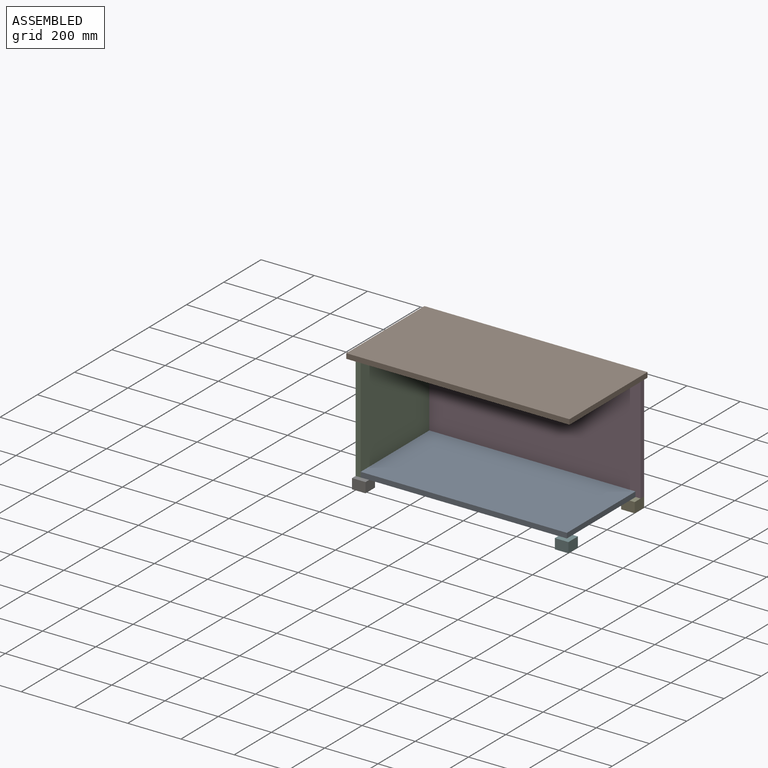
[diagram: assembled view]
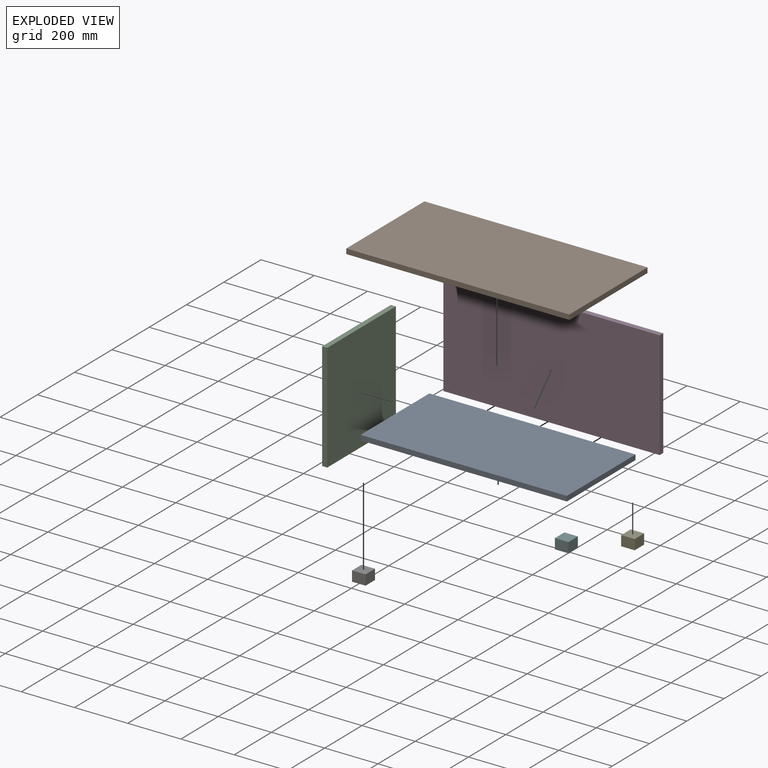
[diagram: exploded view]
GUIDED TOUR — FREECAD ASSEMBLY "complete"

This assembly has 7 components, labeled P0..P6 below (a component is one placed body or linked part; the same part can appear more than once), held together by 0 modeled joints plus 10 derived contact edges. A joint is a constraint between two components; its type names the relative motion it leaves free:
  CONTACT — a derived adjacency edge — the two components touch in the source model (clearance under 2% of the assembly's diagonal); it is measured from the geometry, not a modeled constraint.
Axis/direction vectors are unit vectors and 'through' points are millimeter coordinates, both in the assembly's world frame.

MATES
  1. CONTACT "contact_0_2": P0 <-> P2, contact direction (-0.976, -0.122, 0.178) through (-387.35, -368.30, 0.00) mm (derived from contact, not a modeled constraint)
  2. CONTACT "contact_0_3": P0 <-> P3, contact direction (0.071, 0.597, 0.799) through (396.88, 0.00, 0.00) mm (derived from contact, not a modeled constraint)
  3. CONTACT "contact_0_4": P0 <-> P4, contact direction (0.000, 0.000, -1.000) through (352.43, -34.92, 0.00) mm (derived from contact, not a modeled constraint)
  4. CONTACT "contact_0_5": P0 <-> P5, contact direction (0.000, 0.000, -1.000) through (352.43, -333.38, 0.00) mm (derived from contact, not a modeled constraint)
  5. CONTACT "contact_0_6": P0 <-> P6, contact direction (0.000, 0.000, -1.000) through (-352.43, -333.38, 0.00) mm (derived from contact, not a modeled constraint)
  6. CONTACT "contact_1_2": P1 <-> P2, contact direction (-1.000, 0.000, 0.000) through (-384.18, -365.12, 406.40) mm (derived from contact, not a modeled constraint)
  7. CONTACT "contact_1_3": P1 <-> P3, contact direction (-0.204, 0.793, -0.575) through (412.75, 19.05, 406.40) mm (derived from contact, not a modeled constraint)
  8. CONTACT "contact_2_3": P2 <-> P3, contact direction (0.976, 0.122, -0.178) through (-406.40, 0.00, 406.40) mm (derived from contact, not a modeled constraint)
  9. CONTACT "contact_2_6": P2 <-> P6, contact direction (-0.071, -0.597, -0.799) through (-406.40, -377.82, 0.00) mm (derived from contact, not a modeled constraint)
  10. CONTACT "contact_3_4": P3 <-> P4, contact direction (0.976, 0.122, -0.178) through (406.40, 19.05, 0.00) mm (derived from contact, not a modeled constraint)

ASSEMBLY ORDER
  1. P5 — the base component [order verified]
  2. P4 [order verified]
  3. P0 [order verified]
  4. P3 [order verified]
  5. P6 [order verified]
  6. P2 [order verified]
  7. P1 [order verified]
Order-tag legend:
  [order verified] — this step's position reverses a verified removal order: the component was checked to insert without passing through the ones already placed.

Of the 7 components, 7 carry a construction recipe — the FreeCAD feature program (sketches with constraints, then the solid features that consume them) that regenerates the part from scratch, quoted from this document or from the linked companion document it references; the rest are supplied as boundary geometry only. The tour below walks the components in assembly order: each is shown spotlighted twice — in the assembled view, then in the exploded view, where a leader line traces a displaced component back to its assembled socket (components that stay in place when exploded have no leader line; saturated green if recipe-attached, orange if geometry-only; every other component desaturated gray) — followed by its recipe or geometry summary and the mates that hold it.
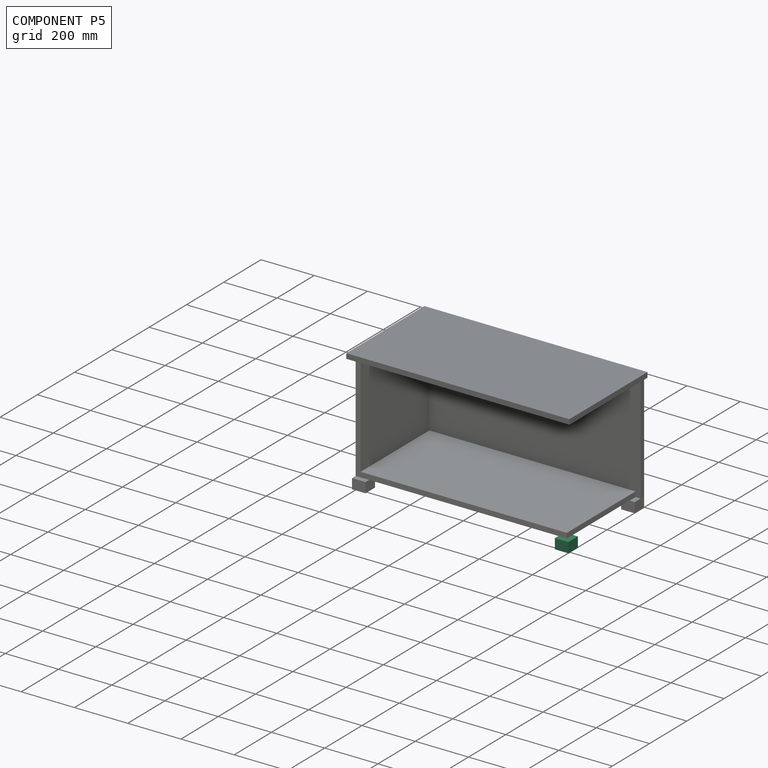
[diagram: component P5 — assembled]
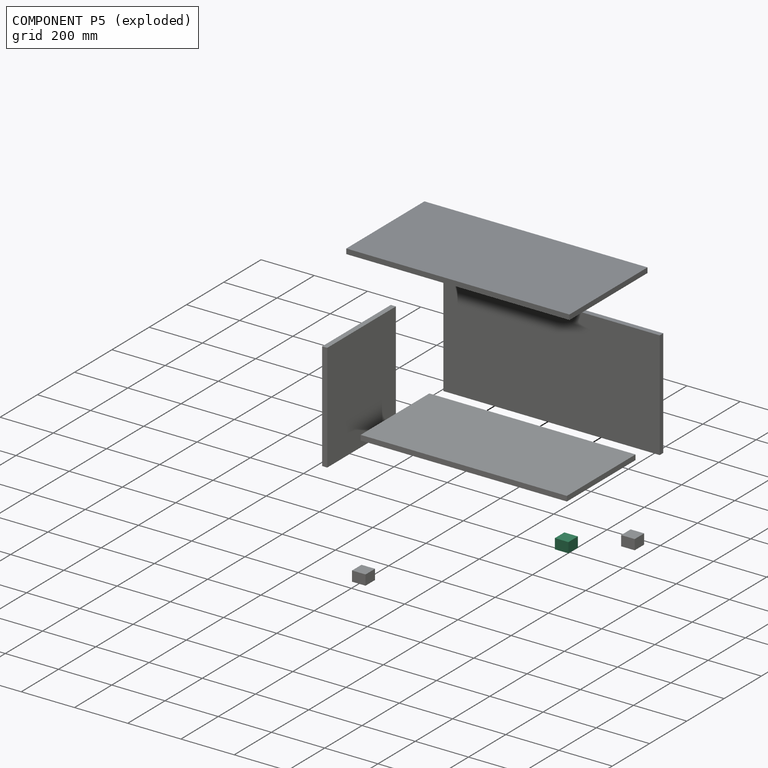
[diagram: component P5 — exploded]
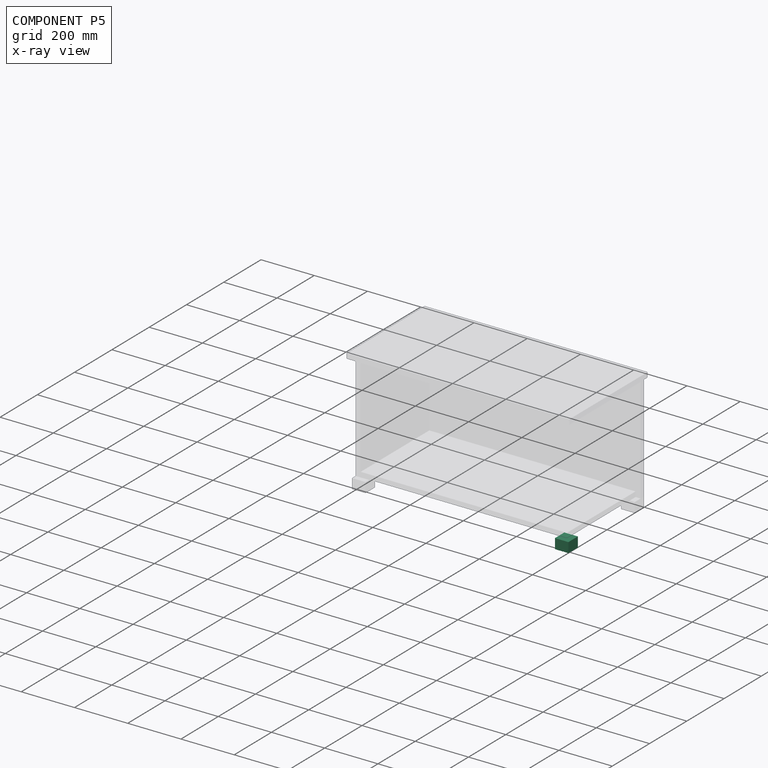
[diagram: component P5 — x-ray view]
COMPONENT P5 — same part as P4; its construction recipe is shown at P4.
Held by: resting contact with P0 (derived edge).
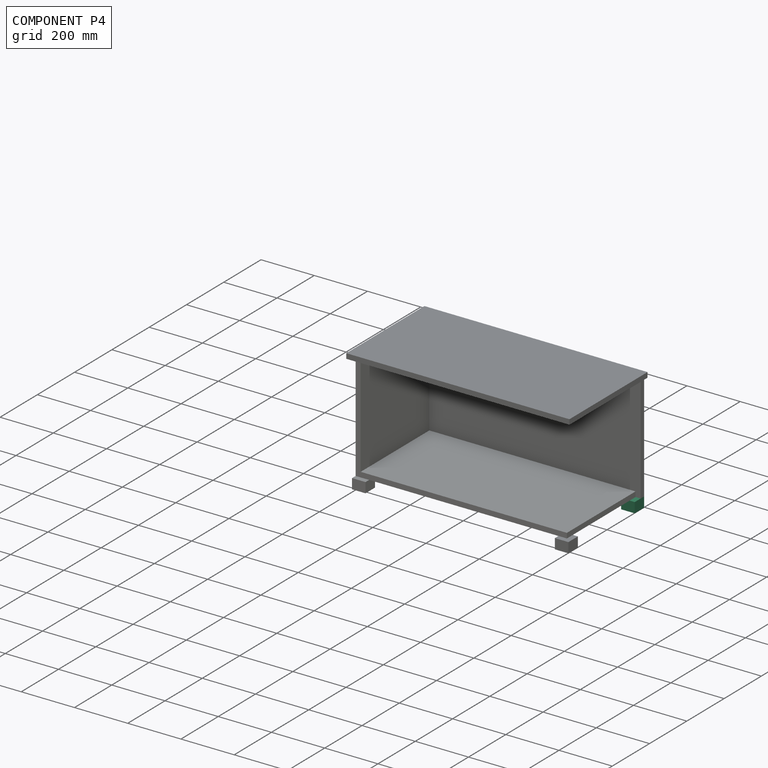
[diagram: component P4 — assembled]
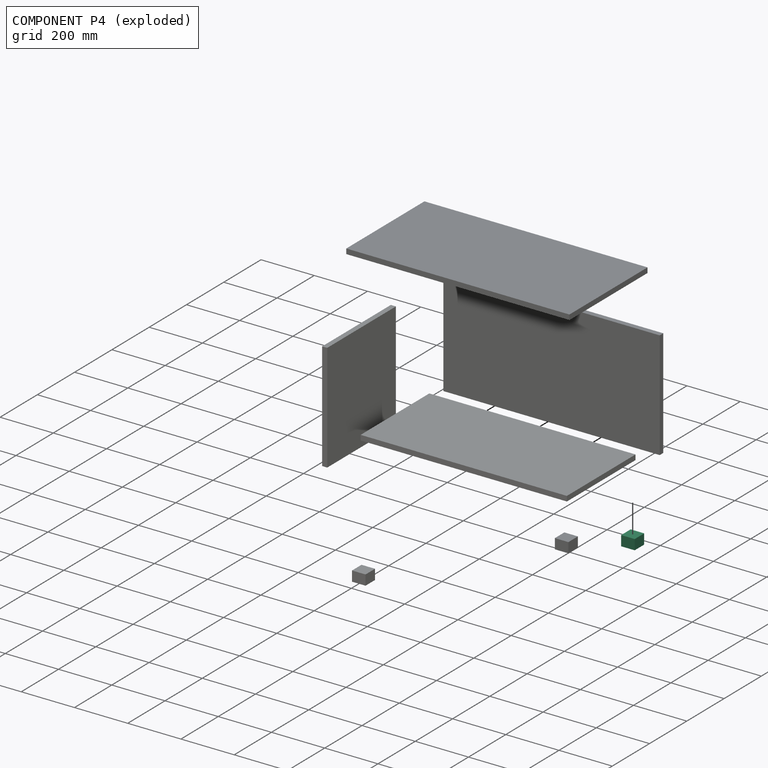
[diagram: component P4 — exploded]
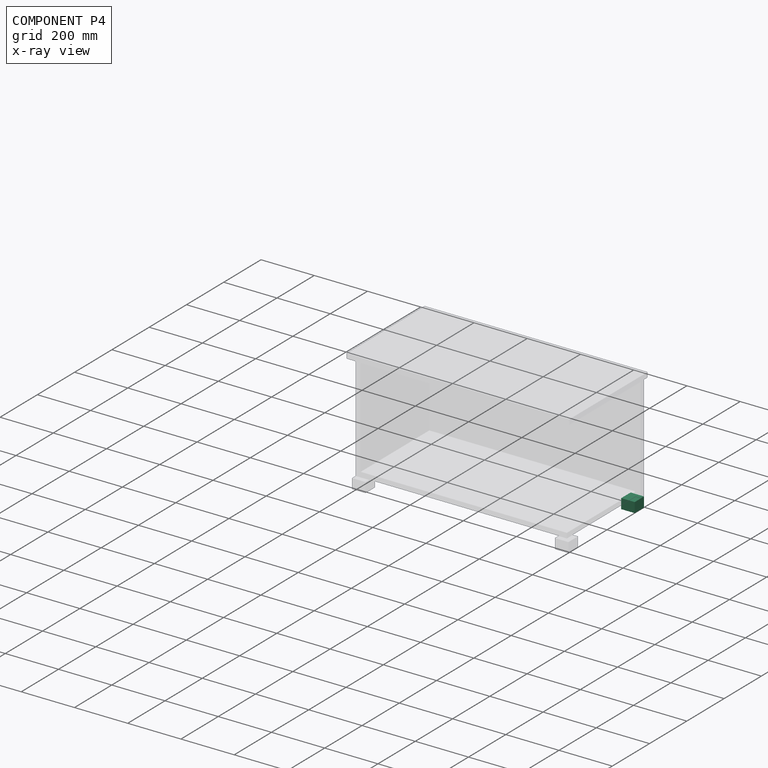
[diagram: component P4 — x-ray view]
COMPONENT P4 — recipe-attached ("foot001", modeled in this document).
Held by: resting contact with P0 (derived edge); resting contact with P3 (derived edge).
Construction recipe (the document's own serialized feature program — sketch geometry with constraints, then the solid features built on it; lengths are millimeters unless a unit is written):

FEATURE [Sketcher::SketchObject] Sketch009
  FullyConstrained = true
  MapMode = 5
  Support = -> [XY_Plane004]
  sketch-geometry (4):
    g0: LineSegment StartX=-25.4 StartY=25.4 StartZ=0 EndX=25.4 EndY=25.4 EndZ=0
    g1: LineSegment StartX=25.4 StartY=25.4 StartZ=0 EndX=25.4 EndY=-25.4 EndZ=0
    g2: LineSegment StartX=25.4 StartY=-25.4 StartZ=0 EndX=-25.4 EndY=-25.4 EndZ=0
    g3: LineSegment StartX=-25.4 StartY=-25.4 StartZ=0 EndX=-25.4 EndY=25.4 EndZ=0
  constraints (10):
    c: Coincident(g0,g1)
    c: Coincident(g1,g2)
    c: Coincident(g2,g3)
    c: Coincident(g3,g0)
    c: Horizontal(g2)
    c: Vertical(g1)
    c: Symmetric(g0,g0,g-2)
    c: Symmetric(g0,g2,g-1)
    c: Equal(g3,g0)
    c: DistanceX(g0,g0) = 50.8
FEATURE [PartDesign::Pad] Pad009
  Direction = (1,1,1)
  Length = 38.1
  Length2 = 100.076
  Profile = -> Sketch009
  Type = 0
FEATURE [PartDesign::Body] Body004  label="foot"
  Group = -> [Sketch009,Pad009]
  Origin = -> Origin004
  Placement = pos=(-381,-6.35,-38.1) rot=(0,0,1;0rad)
  Tip = -> Pad009
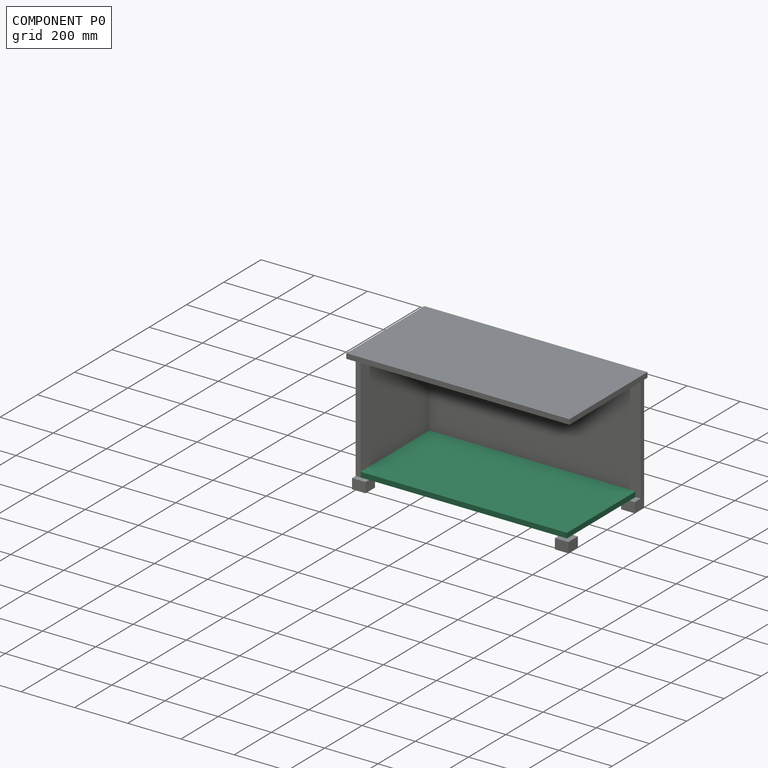
[diagram: component P0 — assembled]
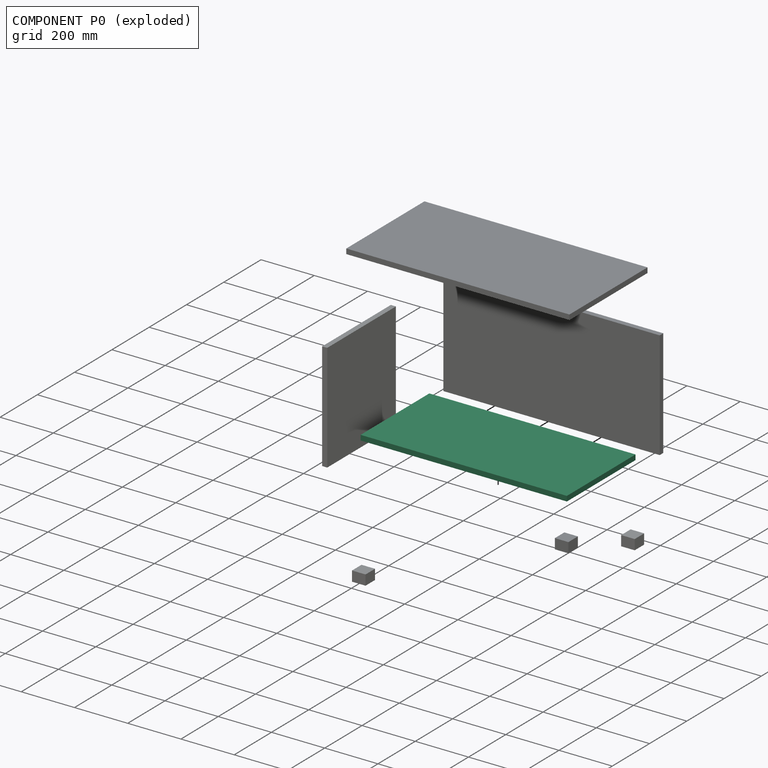
[diagram: component P0 — exploded]
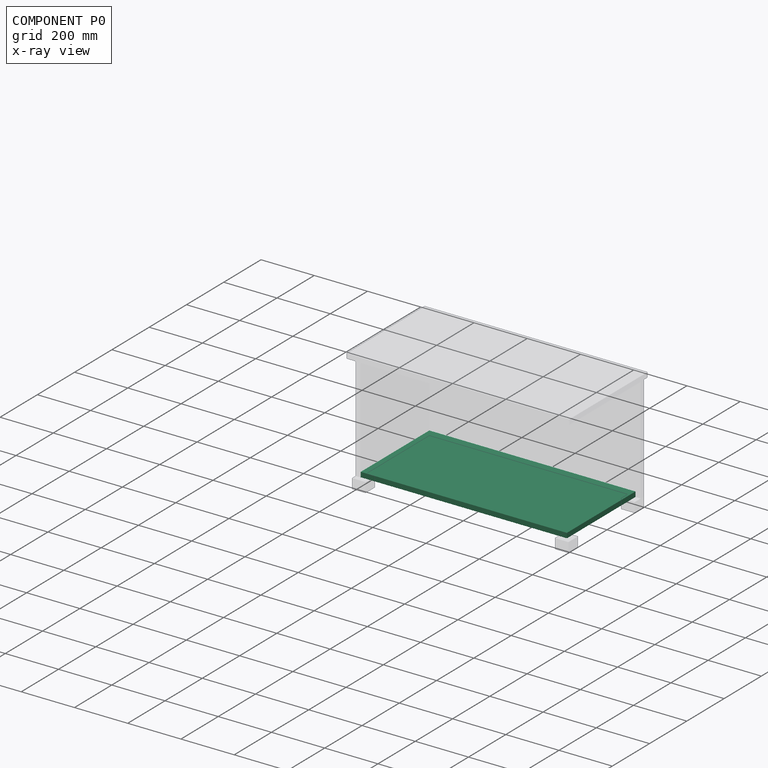
[diagram: component P0 — x-ray view]
COMPONENT P0 — recipe-attached ("bottom", modeled in this document).
Held by: resting contact with P2 (derived edge); resting contact with P3 (derived edge); resting contact with P4 (derived edge); resting contact with P5 (derived edge); resting contact with P6 (derived edge).
Construction recipe (the document's own serialized feature program — sketch geometry with constraints, then the solid features built on it; lengths are millimeters unless a unit is written):

FEATURE [Sketcher::SketchObject] Sketch
  FullyConstrained = true
  MapMode = 5
  Support = -> [XY_Plane]
  sketch-geometry (8):
    g0: LineSegment StartX=-387.35 StartY=0 StartZ=0 EndX=387.35 EndY=-1e-15 EndZ=0
    g1: LineSegment StartX=387.35 StartY=-1e-15 StartZ=0 EndX=387.35 EndY=-368.3 EndZ=0
    g2: LineSegment StartX=387.35 StartY=-368.3 StartZ=0 EndX=-387.35 EndY=-368.3 EndZ=0
    g3: LineSegment StartX=-387.35 StartY=-368.3 StartZ=0 EndX=-387.35 EndY=0 EndZ=0
    g4: LineSegment StartX=-349.25 StartY=-38.1 StartZ=0 EndX=349.25 EndY=-38.1 EndZ=0
    g5: LineSegment StartX=349.25 StartY=-38.1 StartZ=0 EndX=349.25 EndY=-330.2 EndZ=0
    g6: LineSegment StartX=349.25 StartY=-330.2 StartZ=0 EndX=-349.25 EndY=-330.2 EndZ=0
    g7: LineSegment StartX=-349.25 StartY=-330.2 StartZ=0 EndX=-349.25 EndY=-38.1 EndZ=0
  constraints (23):
    c: Coincident(g0,g1)
    c: Coincident(g1,g2)
    c: Coincident(g2,g3)
    c: Coincident(g3,g0)
    c: Horizontal(g2)
    c: Vertical(g1)
    c: Vertical(g3)
    c: PointOnObject(g0,g-1)
    c: Symmetric(g0,g0,g-2)
    c: DistanceX(g0,g0) = 774.7
    c: DistanceY(g3,g3) = 368.3
    c: Coincident(g4,g5)
    c: Coincident(g5,g6)
    c: Coincident(g6,g7)
    c: Coincident(g7,g4)
    c: Horizontal(g4)
    c: Horizontal(g6)
    c: Vertical(g5)
    c: Vertical(g7)
    c: DistanceX(g4,g0) = 38.1
    c: DistanceY(g4,g0) = 38.1
    c: DistanceY(g1,g5) = 38.1
    c: DistanceX(g0,g4) = 38.1
FEATURE [PartDesign::Pad] Pad
  Direction = (1,1,1)
  Length = 19.05
  Length2 = 100.076
  Profile = -> Sketch
  Type = 0
FEATURE [Sketcher::SketchObject] Sketch001
  ExternalGeometry = -> [Pad]
  FullyConstrained = true
  MapMode = 5
  Placement = pos=(0,0,19.05) rot=(0,0,1;0rad)
  Support = -> [Pad]
  sketch-geometry (4):
    g0: LineSegment StartX=-349.25 StartY=-38.1 StartZ=0 EndX=349.25 EndY=-38.1 EndZ=0
    g1: LineSegment StartX=349.25 StartY=-38.1 StartZ=0 EndX=349.25 EndY=-330.2 EndZ=0
    g2: LineSegment StartX=349.25 StartY=-330.2 StartZ=0 EndX=-349.25 EndY=-330.2 EndZ=0
    g3: LineSegment StartX=-349.25 StartY=-330.2 StartZ=0 EndX=-349.25 EndY=-38.1 EndZ=0
  constraints (10):
    c: Coincident(g0,g1)
    c: Coincident(g1,g2)
    c: Coincident(g2,g3)
    c: Coincident(g3,g0)
    c: Horizontal(g0)
    c: Horizontal(g2)
    c: Vertical(g1)
    c: Vertical(g3)
    c: Coincident(g0,g-3)
    c: Coincident(g1,g-4)
FEATURE [PartDesign::Pad] Pad001
  BaseFeature = -> Pad
  Direction = (1,1,1)
  Length = 12.7
  Length2 = 100.076
  Profile = -> Sketch001
  Reversed = true
  Type = 0
FEATURE [PartDesign::Body] Body  label="bottom"
  Group = -> [Sketch,Pad,Sketch001,Pad001]
  Origin = -> Origin
  Tip = -> Pad001
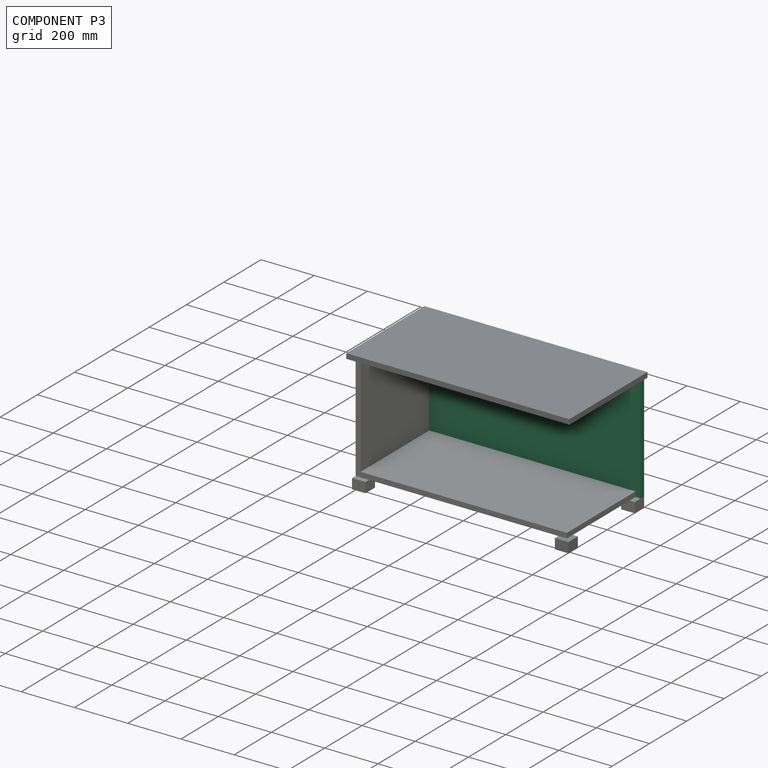
[diagram: component P3 — assembled]
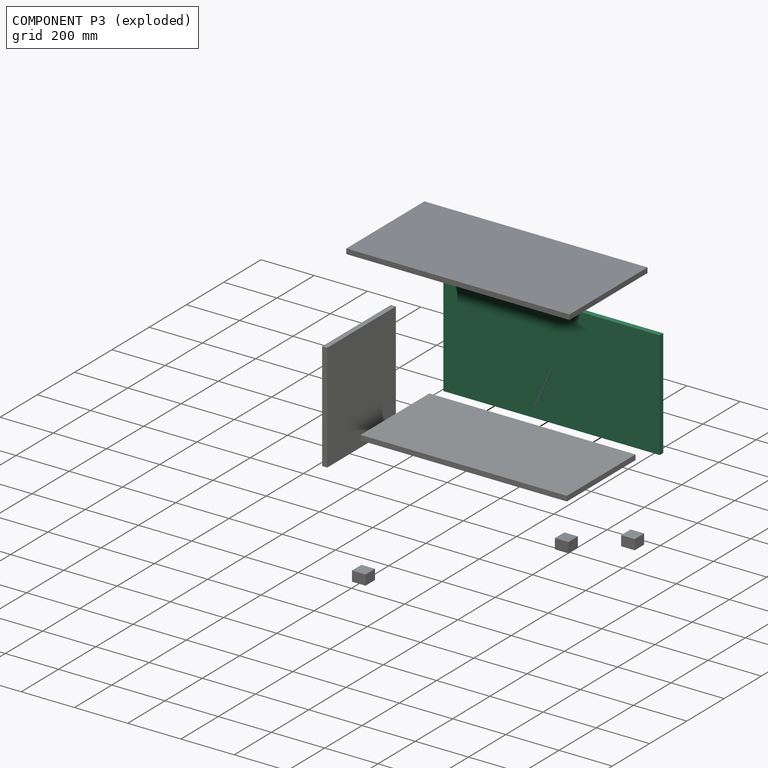
[diagram: component P3 — exploded]
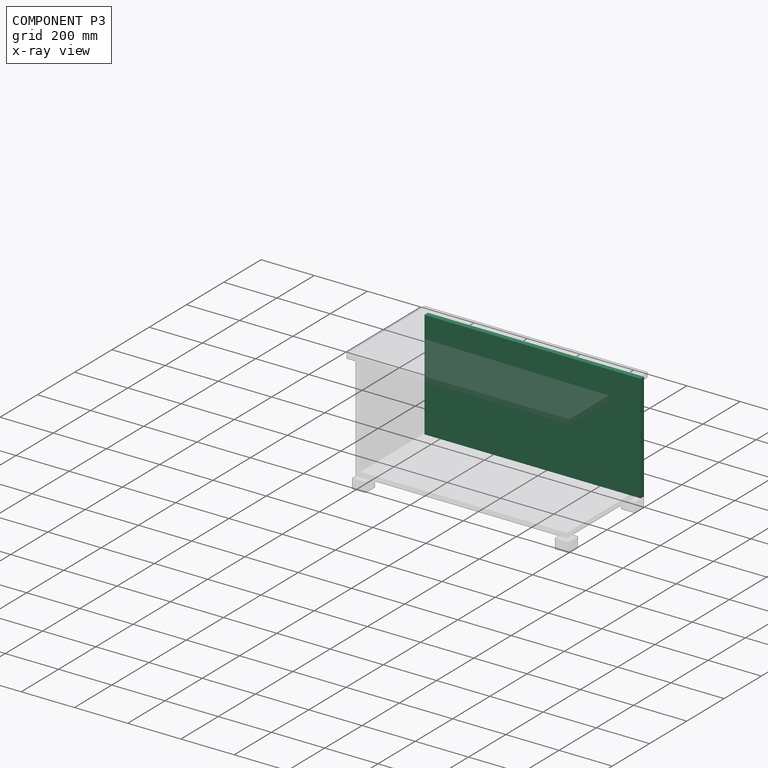
[diagram: component P3 — x-ray view]
COMPONENT P3 — recipe-attached ("back", modeled in this document).
Held by: resting contact with P0 (derived edge); resting contact with P1 (derived edge); resting contact with P2 (derived edge); resting contact with P4 (derived edge).
Construction recipe (the document's own serialized feature program — sketch geometry with constraints, then the solid features built on it; lengths are millimeters unless a unit is written):

FEATURE [Sketcher::SketchObject] Sketch004
  FullyConstrained = true
  MapMode = 5
  Placement = pos=(0,0,0) rot=(1,0,0;1.5708rad)
  Support = -> [XZ_Plane002]
  sketch-geometry (16):
    g0: LineSegment StartX=-406.4 StartY=406.4 StartZ=0 EndX=406.4 EndY=406.4 EndZ=0
    g1: LineSegment StartX=406.4 StartY=406.4 StartZ=0 EndX=406.4 EndY=0 EndZ=0
    g2: LineSegment StartX=406.4 StartY=0 StartZ=0 EndX=-406.4 EndY=0 EndZ=0
    g3: LineSegment StartX=-406.4 StartY=0 StartZ=0 EndX=-406.4 EndY=406.4 EndZ=0
    g4: LineSegment StartX=-368.3 StartY=368.3 StartZ=0 EndX=-148.167 EndY=368.3 EndZ=0
    g5: LineSegment StartX=368.3 StartY=368.3 StartZ=0 EndX=368.3 EndY=38.1 EndZ=0
    g6: LineSegment StartX=368.3 StartY=38.1 StartZ=0 EndX=148.167 EndY=38.1 EndZ=0
    g7: LineSegment StartX=-368.3 StartY=38.1 StartZ=0 EndX=-368.3 EndY=368.3 EndZ=0
    g8: LineSegment StartX=148.167 StartY=368.3 StartZ=0 EndX=368.3 EndY=368.3 EndZ=0
    g9: LineSegment StartX=-148.167 StartY=38.1 StartZ=0 EndX=-368.3 EndY=38.1 EndZ=0
    g10: LineSegment StartX=-148.167 StartY=368.3 StartZ=0 EndX=-148.167 EndY=38.1 EndZ=0
    g11: LineSegment StartX=148.167 StartY=368.3 StartZ=0 EndX=148.167 EndY=38.1 EndZ=0
    g12: LineSegment StartX=-110.067 StartY=368.3 StartZ=0 EndX=110.067 EndY=368.3 EndZ=0
    g13: LineSegment StartX=110.067 StartY=368.3 StartZ=0 EndX=110.067 EndY=38.1 EndZ=0
    g14: LineSegment StartX=110.067 StartY=38.1 StartZ=0 EndX=-110.067 EndY=38.1 EndZ=0
    g15: LineSegment StartX=-110.067 StartY=38.1 StartZ=0 EndX=-110.067 EndY=368.3 EndZ=0
  constraints (45):
    c: Coincident(g0,g1)
    c: Coincident(g1,g2)
    c: Coincident(g2,g3)
    c: Coincident(g3,g0)
    c: Horizontal(g2)
    c: Vertical(g1)
    c: Vertical(g3)
    c: Symmetric(g0,g0,g-2)
    c: DistanceX(g0,g0) = 812.8
    c: PointOnObject(g-1,g2)
    c: DistanceY(g1,g1) = 406.4
    c: Coincident(g8,g5)
    c: Coincident(g5,g6)
    c: Coincident(g9,g7)
    c: Coincident(g7,g4)
    c: Horizontal(g4)
    c: Horizontal(g6)
    c: Vertical(g5)
    c: Vertical(g7)
    c: DistanceX(g8,g0) = 38.1
    c: DistanceY(g1,g5) = 38.1
    c: DistanceX(g2,g9) = 38.1
    c: DistanceY(g4,g0) = 38.1
    c: Tangent(g4,g8)
    c: Tangent(g6,g9)
    c: Vertical(g4,g9)
    c: Vertical(g8,g6)
    c: Coincident(g10,g4)
    c: Coincident(g10,g9)
    c: Coincident(g11,g8)
    c: Coincident(g11,g6)
    c: Coincident(g12,g13)
    c: Coincident(g13,g14)
    c: Coincident(g14,g15)
    c: Coincident(g15,g12)
    c: Horizontal(g12)
    c: Horizontal(g14)
    c: Vertical(g13)
    c: Vertical(g15)
    c: Equal(g4,g12)
    c: Equal(g12,g8)
    c: Horizontal(g8,g12)
    c: Horizontal(g13,g6)
    c: DistanceX(g4,g12) = 38.1
    c: DistanceX(g12,g8) = 38.1
FEATURE [PartDesign::Pad] Pad004
  Direction = (1,1,1)
  Length = 19.05
  Length2 = 100.076
  Placement = pos=(0,0,0) rot=(1,0,0;1.5708rad)
  Profile = -> Sketch004
  Type = 0
FEATURE [Sketcher::SketchObject] Sketch008
  ExternalGeometry = -> [Pad004]
  FullyConstrained = true
  MapMode = 5
  Placement = pos=(0,0,0) rot=(1,0,0;1.5708rad)
  Support = -> [XZ_Plane002]
  sketch-geometry (12):
    g0: LineSegment StartX=-368.3 StartY=368.3 StartZ=0 EndX=-148.167 EndY=368.3 EndZ=0
    g1: LineSegment StartX=-148.167 StartY=368.3 StartZ=0 EndX=-148.167 EndY=38.1 EndZ=0
    g2: LineSegment StartX=-148.167 StartY=38.1 StartZ=0 EndX=-368.3 EndY=38.1 EndZ=0
    g3: LineSegment StartX=-368.3 StartY=38.1 StartZ=0 EndX=-368.3 EndY=368.3 EndZ=0
    g4: LineSegment StartX=-110.067 StartY=368.3 StartZ=0 EndX=110.067 EndY=368.3 EndZ=0
    g5: LineSegment StartX=110.067 StartY=368.3 StartZ=0 EndX=110.067 EndY=38.1 EndZ=0
    g6: LineSegment StartX=110.067 StartY=38.1 StartZ=0 EndX=-110.067 EndY=38.1 EndZ=0
    g7: LineSegment StartX=-110.067 StartY=38.1 StartZ=0 EndX=-110.067 EndY=368.3 EndZ=0
    g8: LineSegment StartX=148.167 StartY=368.3 StartZ=0 EndX=368.3 EndY=368.3 EndZ=0
    g9: LineSegment StartX=368.3 StartY=368.3 StartZ=0 EndX=368.3 EndY=38.1 EndZ=0
    g10: LineSegment StartX=368.3 StartY=38.1 StartZ=0 EndX=148.167 EndY=38.1 EndZ=0
    g11: LineSegment StartX=148.167 StartY=38.1 StartZ=0 EndX=148.167 EndY=368.3 EndZ=0
  constraints (30):
    c: Coincident(g0,g1)
    c: Coincident(g1,g2)
    c: Coincident(g2,g3)
    c: Coincident(g3,g0)
    c: Horizontal(g0)
    c: Horizontal(g2)
    c: Vertical(g1)
    c: Vertical(g3)
    c: Coincident(g0,g-3)
    c: Coincident(g1,g-4)
    c: Coincident(g4,g5)
    c: Coincident(g5,g6)
    c: Coincident(g6,g7)
    c: Coincident(g7,g4)
    c: Horizontal(g4)
    c: Horizontal(g6)
    c: Vertical(g5)
    c: Vertical(g7)
    c: Coincident(g4,g-5)
    c: Coincident(g5,g-6)
    c: Coincident(g8,g9)
    c: Coincident(g9,g10)
    c: Coincident(g10,g11)
    c: Coincident(g11,g8)
    c: Horizontal(g8)
    c: Horizontal(g10)
    c: Vertical(g9)
    c: Vertical(g11)
    c: Coincident(g8,g-7)
    c: Coincident(g9,g-8)
FEATURE [PartDesign::Pad] Pad008
  BaseFeature = -> Pad004
  Direction = (1,1,1)
  Length = 12.7
  Length2 = 100.076
  Placement = pos=(0,0,0) rot=(1,0,0;1.5708rad)
  Profile = -> Sketch008
  Type = 0
FEATURE [PartDesign::Body] Body002  label="front"
  Group = -> [Sketch004,Pad004,Sketch008,Pad008]
  Origin = -> Origin002
  Placement = pos=(0,-368.3,0) rot=(0,0,1;0rad)
  Tip = -> Pad008
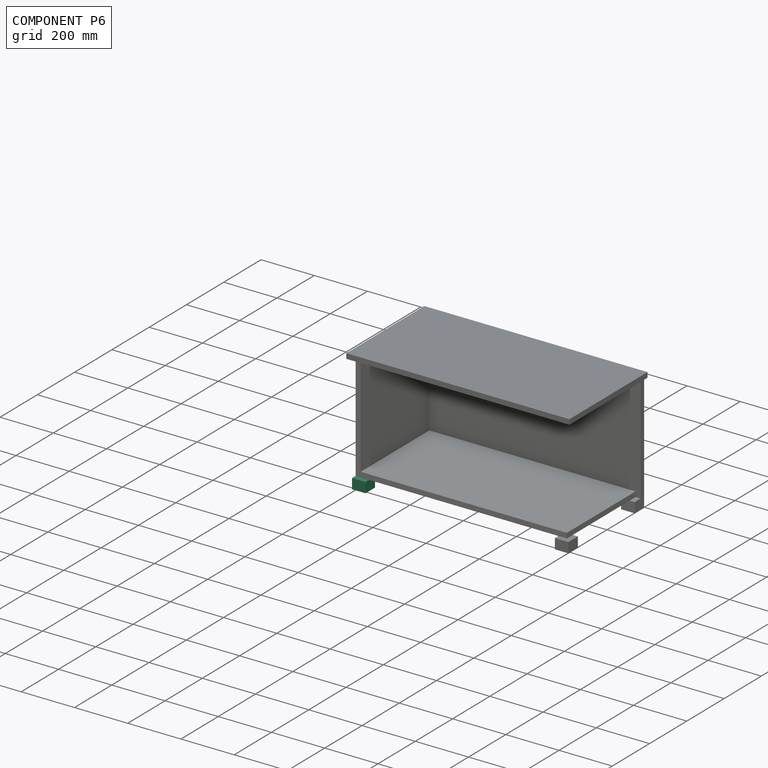
[diagram: component P6 — assembled]
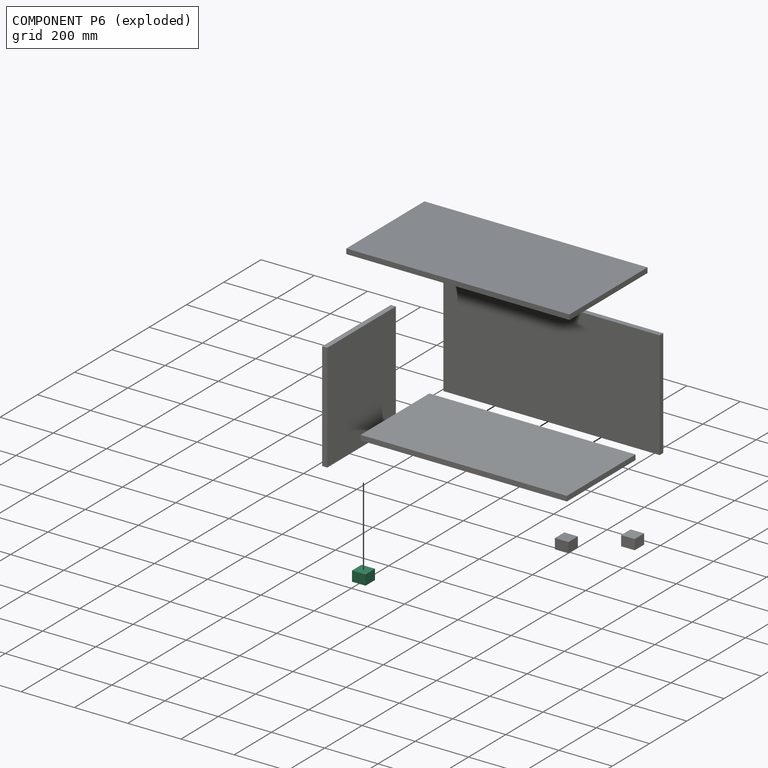
[diagram: component P6 — exploded]
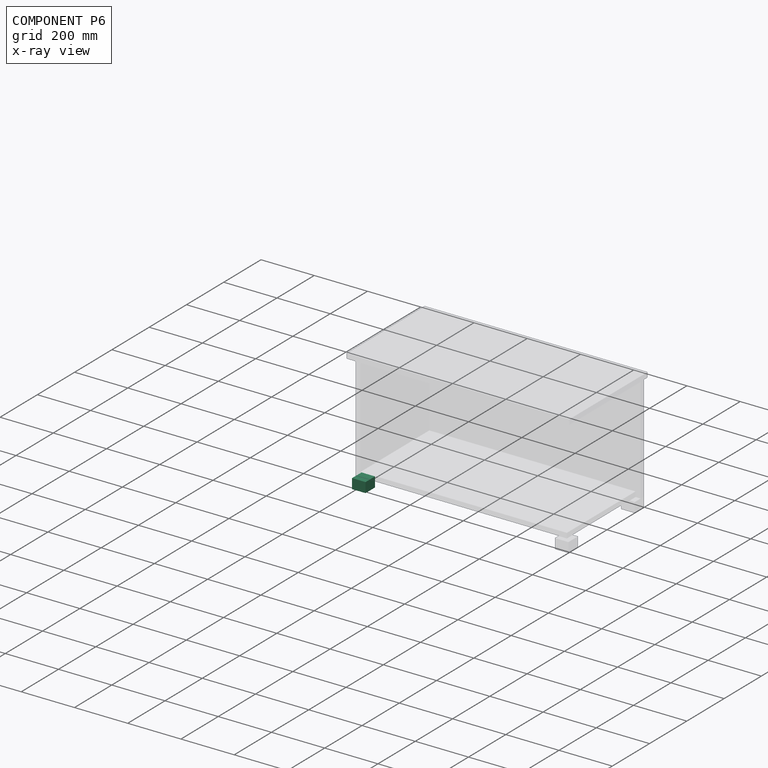
[diagram: component P6 — x-ray view]
COMPONENT P6 — same part as P4; its construction recipe is shown at P4.
Held by: resting contact with P0 (derived edge); resting contact with P2 (derived edge).
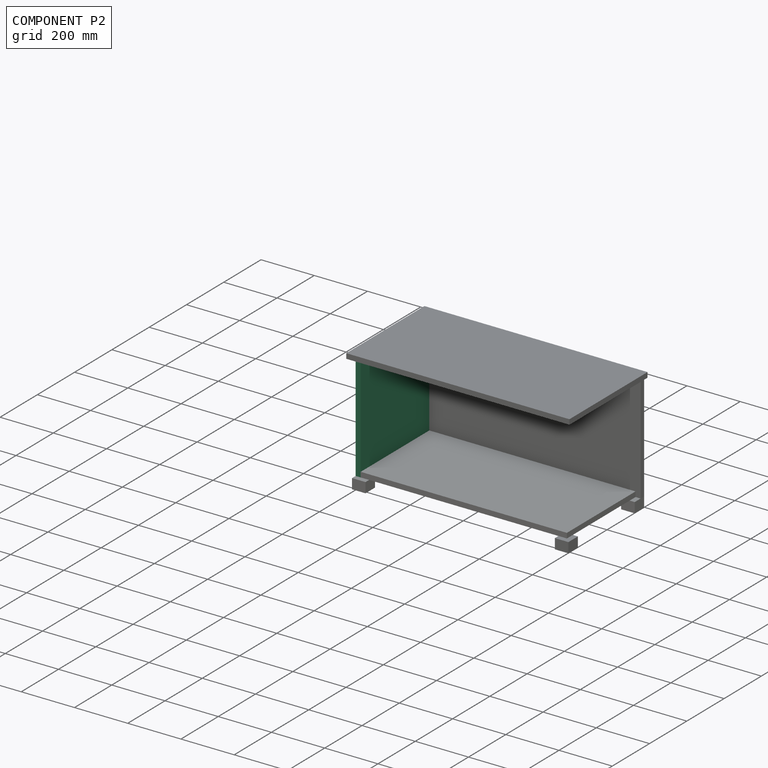
[diagram: component P2 — assembled]
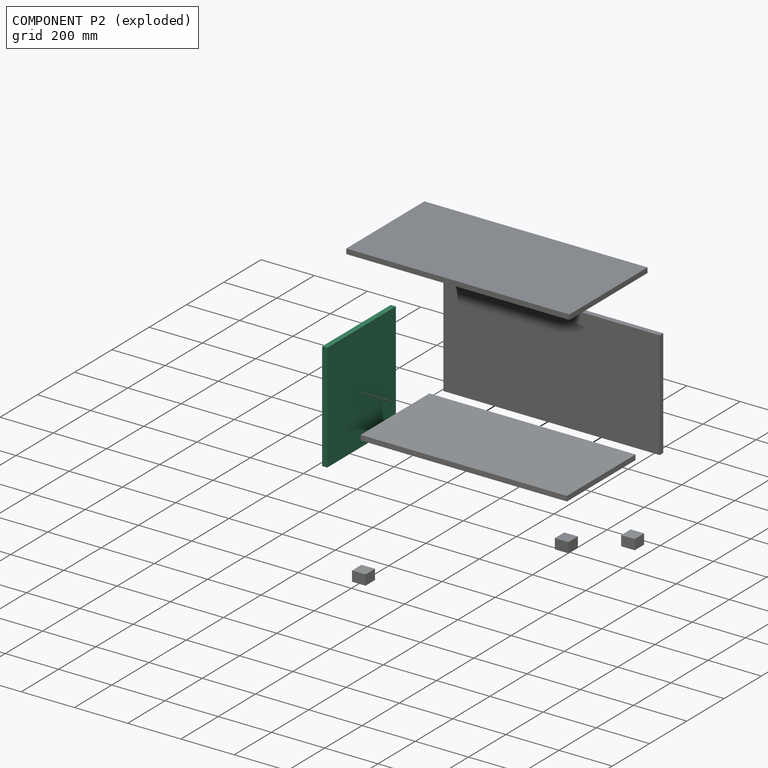
[diagram: component P2 — exploded]
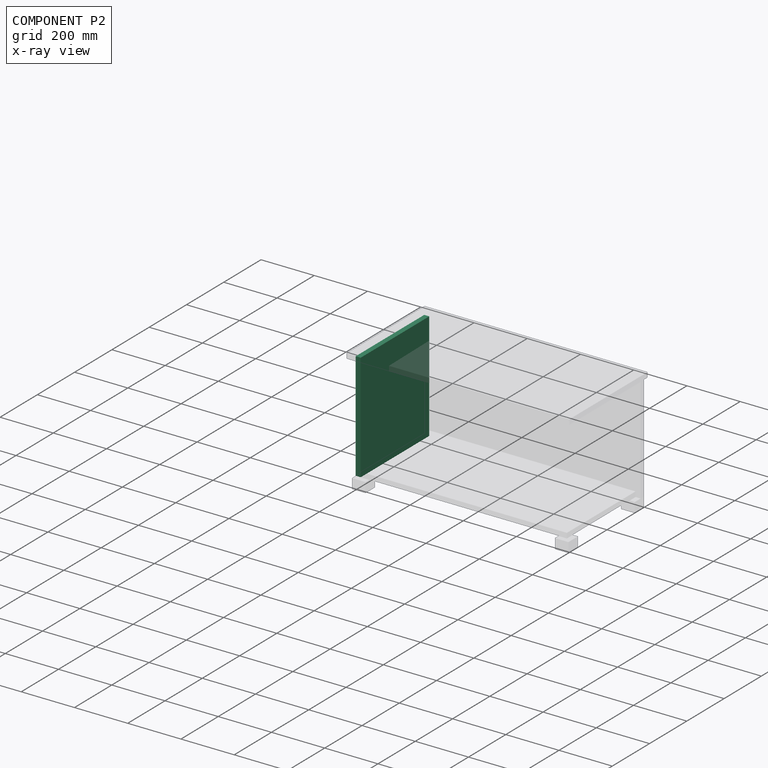
[diagram: component P2 — x-ray view]
COMPONENT P2 — recipe-attached ("left", modeled in this document).
Held by: resting contact with P0 (derived edge); resting contact with P1 (derived edge); resting contact with P3 (derived edge); resting contact with P6 (derived edge).
Construction recipe (the document's own serialized feature program — sketch geometry with constraints, then the solid features built on it; lengths are millimeters unless a unit is written):

FEATURE [Sketcher::SketchObject] Sketch002
  FullyConstrained = true
  MapMode = 5
  Placement = pos=(0,0,0) rot=(0.57735,0.57735,0.57735;2.0944rad)
  Support = -> [YZ_Plane001]
  sketch-geometry (8):
    g0: LineSegment StartX=-368.3 StartY=406.4 StartZ=0 EndX=0 EndY=406.4 EndZ=0
    g1: LineSegment StartX=0 StartY=406.4 StartZ=0 EndX=0 EndY=0 EndZ=0
    g2: LineSegment StartX=0 StartY=0 StartZ=0 EndX=-368.3 EndY=0 EndZ=0
    g3: LineSegment StartX=-368.3 StartY=0 StartZ=0 EndX=-368.3 EndY=406.4 EndZ=0
    g4: LineSegment StartX=-330.2 StartY=368.3 StartZ=0 EndX=-38.1 EndY=368.3 EndZ=0
    g5: LineSegment StartX=-38.1 StartY=368.3 StartZ=0 EndX=-38.1 EndY=38.1 EndZ=0
    g6: LineSegment StartX=-38.1 StartY=38.1 StartZ=0 EndX=-330.2 EndY=38.1 EndZ=0
    g7: LineSegment StartX=-330.2 StartY=38.1 StartZ=0 EndX=-330.2 EndY=368.3 EndZ=0
  constraints (23):
    c: Coincident(g0,g1)
    c: Coincident(g1,g2)
    c: Coincident(g2,g3)
    c: Coincident(g3,g0)
    c: Horizontal(g0)
    c: Horizontal(g2)
    c: Vertical(g1)
    c: Vertical(g3)
    c: Coincident(g1,g-1)
    c: DistanceX(g0,g0) = 368.3
    c: DistanceY(g1,g1) = 406.4
    c: Coincident(g4,g5)
    c: Coincident(g5,g6)
    c: Coincident(g6,g7)
    c: Coincident(g7,g4)
    c: Horizontal(g4)
    c: Horizontal(g6)
    c: Vertical(g5)
    c: Vertical(g7)
    c: DistanceX(g4,g0) = 38.1
    c: DistanceY(g1,g5) = 38.1
    c: DistanceX(g2,g6) = 38.1
    c: DistanceY(g4,g0) = 38.1
FEATURE [PartDesign::Pad] Pad002
  Direction = (1,1,1)
  Length = 19.05
  Length2 = 100.076
  Placement = pos=(0,0,0) rot=(0.57735,0.57735,0.57735;2.0944rad)
  Profile = -> Sketch002
  Type = 0
FEATURE [Sketcher::SketchObject] Sketch003
  ExternalGeometry = -> [Pad002]
  FullyConstrained = true
  MapMode = 5
  Placement = pos=(0,0,0) rot=(0.57735,0.57735,0.57735;2.0944rad)
  Support = -> [YZ_Plane001]
  sketch-geometry (4):
    g0: LineSegment StartX=-330.2 StartY=368.3 StartZ=0 EndX=-38.1 EndY=368.3 EndZ=0
    g1: LineSegment StartX=-38.1 StartY=368.3 StartZ=0 EndX=-38.1 EndY=38.1 EndZ=0
    g2: LineSegment StartX=-38.1 StartY=38.1 StartZ=0 EndX=-330.2 EndY=38.1 EndZ=0
    g3: LineSegment StartX=-330.2 StartY=38.1 StartZ=0 EndX=-330.2 EndY=368.3 EndZ=0
  constraints (10):
    c: Coincident(g0,g1)
    c: Coincident(g1,g2)
    c: Coincident(g2,g3)
    c: Coincident(g3,g0)
    c: Horizontal(g0)
    c: Horizontal(g2)
    c: Vertical(g1)
    c: Vertical(g3)
    c: Coincident(g0,g-3)
    c: Coincident(g1,g-4)
FEATURE [PartDesign::Pad] Pad003
  BaseFeature = -> Pad002
  Direction = (1,1,1)
  Length = 12.7
  Length2 = 100.076
  Placement = pos=(0,0,0) rot=(0.57735,0.57735,0.57735;2.0944rad)
  Profile = -> Sketch003
  Type = 0
FEATURE [PartDesign::Body] Body001  label="right"
  Group = -> [Sketch002,Pad002,Sketch003,Pad003]
  Origin = -> Origin001
  Placement = pos=(387.35,0,0) rot=(0,0,1;0rad)
  Tip = -> Pad003
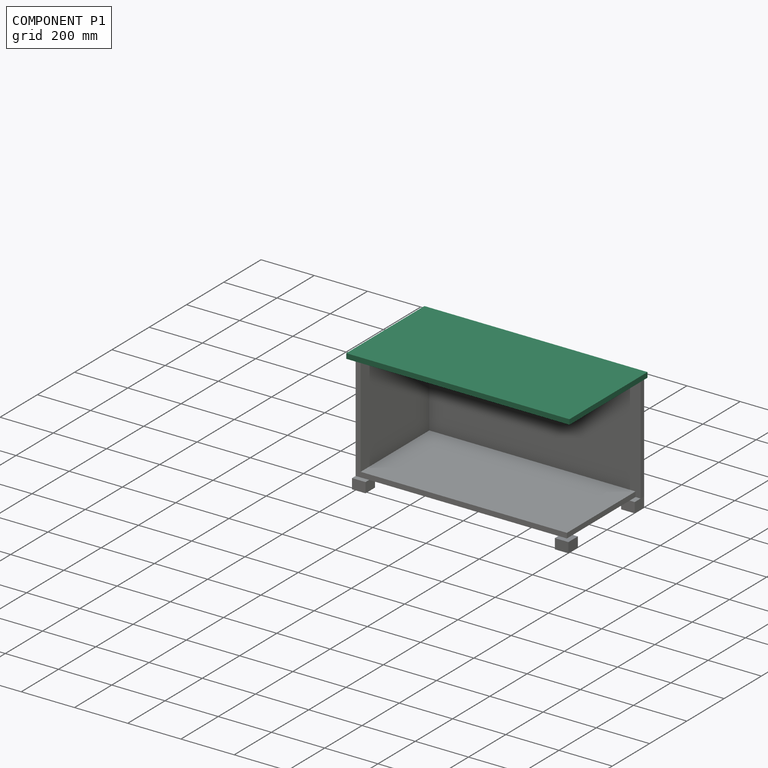
[diagram: component P1 — assembled]
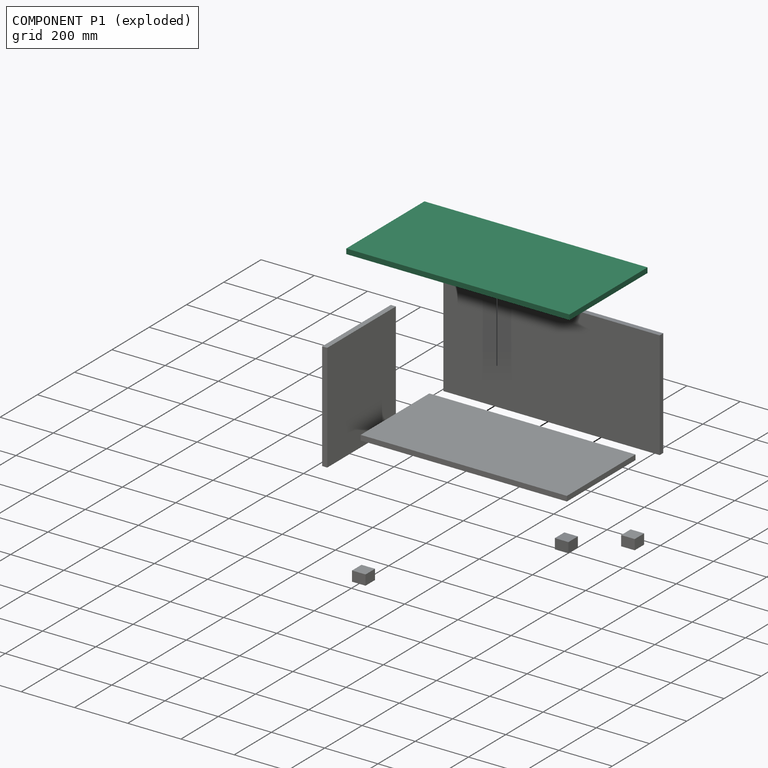
[diagram: component P1 — exploded]
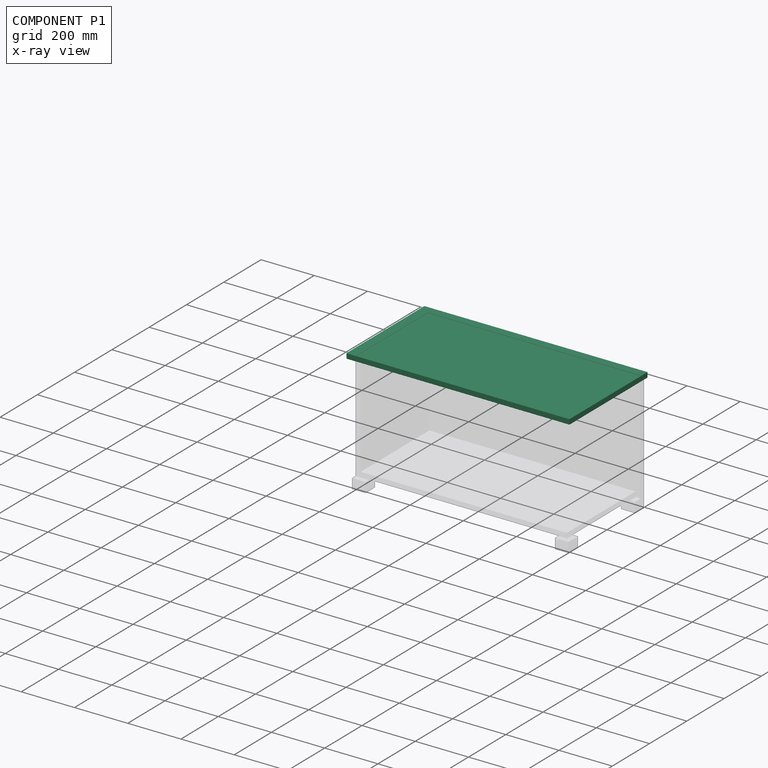
[diagram: component P1 — x-ray view]
COMPONENT P1 — recipe-attached ("top", modeled in this document).
Held by: resting contact with P2 (derived edge); resting contact with P3 (derived edge).
Construction recipe (the document's own serialized feature program — sketch geometry with constraints, then the solid features built on it; lengths are millimeters unless a unit is written):

FEATURE [Sketcher::SketchObject] Sketch006
  FullyConstrained = true
  MapMode = 5
  Support = -> [XY_Plane003]
  sketch-geometry (8):
    g0: LineSegment StartX=-419.1 StartY=0 StartZ=0 EndX=419.1 EndY=0 EndZ=0
    g1: LineSegment StartX=419.1 StartY=0 StartZ=0 EndX=419.1 EndY=-419.1 EndZ=0
    g2: LineSegment StartX=419.1 StartY=-419.1 StartZ=0 EndX=-419.1 EndY=-419.1 EndZ=0
    g3: LineSegment StartX=-419.1 StartY=-419.1 StartZ=0 EndX=-419.1 EndY=0 EndZ=0
    g4: LineSegment StartX=-381 StartY=-38.1 StartZ=0 EndX=381 EndY=-38.1 EndZ=0
    g5: LineSegment StartX=381 StartY=-38.1 StartZ=0 EndX=381 EndY=-381 EndZ=0
    g6: LineSegment StartX=381 StartY=-381 StartZ=0 EndX=-381 EndY=-381 EndZ=0
    g7: LineSegment StartX=-381 StartY=-381 StartZ=0 EndX=-381 EndY=-38.1 EndZ=0
  constraints (23):
    c: Coincident(g0,g1)
    c: Coincident(g1,g2)
    c: Coincident(g2,g3)
    c: Coincident(g3,g0)
    c: Horizontal(g2)
    c: Vertical(g1)
    c: Vertical(g3)
    c: Symmetric(g0,g0,g-2)
    c: DistanceX(g0,g0) = 838.2
    c: DistanceY(g3,g3) = 419.1
    c: PointOnObject(g-1,g0)
    c: Coincident(g4,g5)
    c: Coincident(g5,g6)
    c: Coincident(g6,g7)
    c: Coincident(g7,g4)
    c: Horizontal(g4)
    c: Horizontal(g6)
    c: Vertical(g5)
    c: Vertical(g7)
    c: DistanceX(g4,g0) = 38.1
    c: DistanceY(g1,g5) = 38.1
    c: DistanceX(g2,g6) = 38.1
    c: DistanceY(g4,g0) = 38.1
FEATURE [PartDesign::Pad] Pad006
  Direction = (1,1,1)
  Length = 19.05
  Length2 = 100.076
  Profile = -> Sketch006
  Type = 0
FEATURE [Sketcher::SketchObject] Sketch007
  ExternalGeometry = -> [Pad006]
  FullyConstrained = true
  MapMode = 5
  Placement = pos=(0,0,19.05) rot=(0,0,1;0rad)
  Support = -> [Pad006]
  sketch-geometry (4):
    g0: LineSegment StartX=-381 StartY=-38.1 StartZ=0 EndX=381 EndY=-38.1 EndZ=0
    g1: LineSegment StartX=381 StartY=-38.1 StartZ=0 EndX=381 EndY=-381 EndZ=0
    g2: LineSegment StartX=381 StartY=-381 StartZ=0 EndX=-381 EndY=-381 EndZ=0
    g3: LineSegment StartX=-381 StartY=-381 StartZ=0 EndX=-381 EndY=-38.1 EndZ=0
  constraints (10):
    c: Coincident(g0,g1)
    c: Coincident(g1,g2)
    c: Coincident(g2,g3)
    c: Coincident(g3,g0)
    c: Horizontal(g0)
    c: Horizontal(g2)
    c: Vertical(g1)
    c: Vertical(g3)
    c: Coincident(g0,g-3)
    c: Coincident(g1,g-4)
FEATURE [PartDesign::Pad] Pad007
  BaseFeature = -> Pad006
  Direction = (1,1,1)
  Length = 12.7
  Length2 = 100.076
  Profile = -> Sketch007
  Reversed = true
  Type = 0
FEATURE [PartDesign::Body] Body003  label="top"
  Group = -> [Sketch006,Pad006,Sketch007,Pad007]
  Origin = -> Origin003
  Placement = pos=(0,19.05,406.4) rot=(0,0,1;0rad)
  Tip = -> Pad007
PROVENANCE & LICENSES
Assembly and component geometry: a FreeCAD (.FCStd) document from a public repository crawl; components, placements and joints were extracted with FreeCAD and each solid tessellated.
Construction recipes: the document's own serialized feature recipes (and, for linked parts, the recipes of companion documents from the same project).
License: as declared in the source repository (recorded in the dataset sidecar).
Joints: native FreeCAD joints and A2plus constraints are mapped to standard mate types; edges marked 'derived from contact' connect touching components and are measured from the geometry, not modeled.
Verification: 7 of this assembly's 7 components carry a construction recipe (7 from this document itself); the rest are geometry-only. Every component's tessellation passed the extraction mesh gates (mesh-volume checksum against the B-rep where available, bounding-box inflation <= 2%).
Renders: orthographic iso camera (az 35 / el 25); the floor grid conveys scale (grid pitch printed in each image; no ruler). In the exploded view each component is displaced by its stored offset vector: the offsets alone carry the explosion direction (mate normal/axis signs are not orientation cues and do not encode it), and separation distances are assigned per mate-chain, not proportionally to assembly-order depth.
